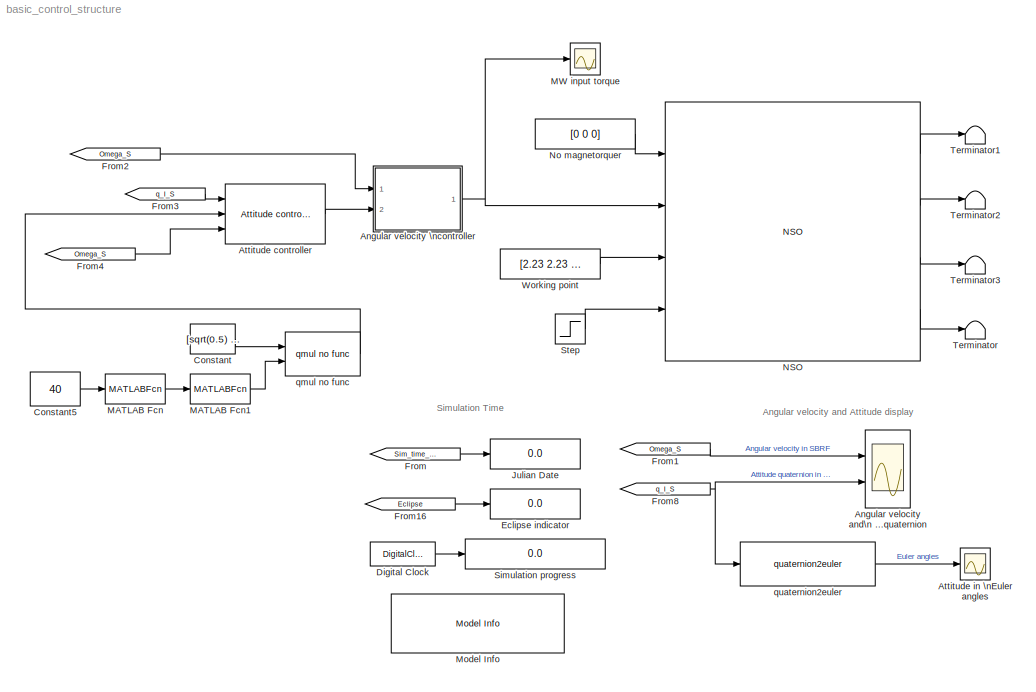
MODEL basic_control_structure
KIND model
CONFIG PreLoadFcn = \n
CONFIG StartFcn = \n\n
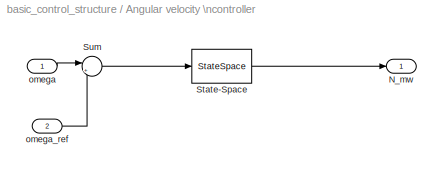
BLOCK [SubSystem] Angular velocity \ncontroller
  MaskDescription = The controller in this block is to be constructed using a state space system. The\nreference is subtracted from the measurement (positive feedback and SS-reference) and passed through the SS-system. Thus if the controller is merely a gain matrix only the D-matrix has to contain the controller and the remaining be zero-matrices. The controller design files are kept in the \"design\" directory and t...<+195ch>
  MaskEnableString = on
  MaskHideContents = off
  MaskIconFrame = on
  MaskIconOpaque = on
  MaskIconRotate = none
  MaskIconUnits = autoscale
  MaskInitialization = run(strcat('design/',ang_file_name))
  MaskPromptString = Angular rate controller design file name (remember gnyfs :-))
  MaskStyleString = edit
  MaskToolTipString = on
  MaskTunableValueString = on
  MaskType = Angular Velocity Controller
  MaskValueString = 'basic_ang_control.m'
  MaskVariables = ang_file_name=@1;
  MaskVisibilityString = on
  MinAlgLoopOccurrences = off
  Ports = [2, 1]
  RTWSystemCode = Auto
  TreatAsAtomicUnit = off
BLOCK [Outport] Angular velocity \ncontroller/N_mw
  BusOutputAsStruct = off
  IconDisplay = Port number
BLOCK [StateSpace] Angular velocity \ncontroller/State-Space
  A = A_ang_c
  B = B_ang_c
  C = C_ang_c
  D = D_ang_c
BLOCK [Sum] Angular velocity \ncontroller/Sum
  IconShape = round
  InputSameDT = off
  Inputs = |+-
  OutDataTypeMode = Inherit via internal rule
  Ports = [2, 1]
  SaturateOnIntegerOverflow = off
BLOCK [Inport] Angular velocity \ncontroller/omega
  IconDisplay = Port number
BLOCK [Inport] Angular velocity \ncontroller/omega_ref
  IconDisplay = Port number
  Port = 2
BLOCK [Scope] Angular velocity and\n attitude quaternion
  DataFormat = StructureWithTime
  Floating = off
  LimitDataPoints = off
  NumInputPorts = 2
  Ports = [2]
  SampleTime = 0
  YMax = 1250~1
  YMin = -250~-1
  ZoomMode = xonly
BLOCK [Reference] Attitude controller  REF=components_lib/ACS/Controllers/Attitude controller  (lib defined in mdl_419550584dda)
  Ports = [3, 1]
  ShowPortLabels = on
  SourceBlock = components_lib/ACS/Controllers/Attitude controller
  SourceType = Attitude Controller
  att_file_name = 'attitude_control_lqr.m'
BLOCK [Scope] Attitude in \nEuler angles
  DataFormat = StructureWithTime
  Floating = off
  LimitDataPoints = off
  NumInputPorts = 1
  Ports = [1]
  SampleTime = 0
  SaveName = ScopeData1
  YMax = 3.5
  YMin = -3.5
BLOCK [Constant] Constant
  Value = [sqrt(0.5) 0 0 sqrt(0.5)]
BLOCK [Constant] Constant5
  Value = 40
BLOCK [DigitalClock] Digital Clock
BLOCK [Display] Eclipse indicator
  Decimation = 1
  Lockdown = off
  Ports = [1]
BLOCK [From] From
  CloseFcn = tagdialog Close
  GotoTag = Sim_time_JD
BLOCK [From] From1
  CloseFcn = tagdialog Close
  GotoTag = Omega_S
BLOCK [From] From16
  CloseFcn = tagdialog Close
  GotoTag = Eclipse
BLOCK [From] From2
  CloseFcn = tagdialog Close
  GotoTag = Omega_S
BLOCK [From] From3
  CloseFcn = tagdialog Close
  GotoTag = q_I_S
BLOCK [From] From4
  CloseFcn = tagdialog Close
  GotoTag = Omega_S
BLOCK [From] From8
  CloseFcn = tagdialog Close
  GotoTag = q_I_S
BLOCK [Display] Julian Date
  Decimation = 1
  Lockdown = off
  Ports = [1]
BLOCK [MATLABFcn] MATLAB Fcn
  MATLABFcn = deg2rad(u)
BLOCK [MATLABFcn] MATLAB Fcn1
  MATLABFcn = [sin(u/2) 0 0 cos(u/2)]
BLOCK [Scope] MW input torque
  DataFormat = StructureWithTime
  Floating = off
  LimitDataPoints = off
  NumInputPorts = 1
  Ports = [1]
  SampleTime = 0
  SaveName = ScopeData6
  YMax = 6e-06
  YMin = -7e-06
  ZoomMode = yonly
BLOCK [Reference] Model Info  REF=simulink/Model-Wide\nUtilities/Model Info
  BlockCM = None
  DisplayStringWithTags = Usefull Julian dates:\nsun to eclipse : 2452315.560376\n32 sec. before : 2452315.56\neclipse to sun : 2452315.513363
  Frame = on
  HorizontalTextAlignment = Left
  InitialBlockCM = None
  LeftAlignmentValue = 0.02
  MaskDisplayString = Usefull Julian dates:\\nsun to eclipse : 2452315.560376\\n32 sec. before : 2452315.56\\neclipse to sun : 2452315.513363
  Ports = []
  ShowPortLabels = on
  SourceBlock = simulink/Model-Wide\nUtilities/Model Info
  SourceBlockDiagram = basic_control_structure
  SourceType = CMBlock
  TagMaxNumber = 20
BLOCK [Reference] NSO  REF=components_lib/NSO  (lib defined in mdl_419550584dda)
  Cd = 2
  Description = AAUSAT-II Model
  Dim = [0.1 0.1 0.3]
  Ports = [4, 4]
  ShowPortLabels = on
  SourceBlock = components_lib/NSO
  Tag = AAUSAT-II Model
  alb_emu_enabled = off
  enable_dist = off
  enable_sensor_emulation = off
  inertia_c = [25 25 5]/1e3
  inertia_d = [42.3 42.3 28.4]/1e3
  init_jd = 2452315.56
  mass_sc = 3
  q_init_s_i = [sqrt(0.5) 0 0 sqrt(0.5)]
  q_s_c = [0 0 0 1]
  r_com_s = [0.05 0.05 0.15]
  r_com_s_deployed = [0.05 0.05 0.125]
  rho = 9.25e-13
  sat_temp_start = 0
  w_init_s = [0.1 0.1 0.1]
BLOCK [Constant] No magnetorquer
  Value = [0 0 0]
BLOCK [Display] Simulation progress
  Decimation = 1
  Format = long
  Lockdown = off
  Ports = [1]
BLOCK [Step] Step
  SampleTime = 0
  Time = 0
BLOCK [Terminator] Terminator
BLOCK [Terminator] Terminator1
BLOCK [Terminator] Terminator2
BLOCK [Terminator] Terminator3
BLOCK [Constant] Working point
  Value = [2.23 2.23 2.23]*1e-3
BLOCK [Reference] qmul no func  REF=components_lib/Math utilities/Quaternion operations/qmul no func  (lib defined in mdl_419550584dda)
  Ports = [2, 1]
  ShowPortLabels = on
  SourceBlock = components_lib/Math utilities/Quaternion operations/qmul no func
  SourceType = SubSystem
BLOCK [Reference] quaternion2euler  REF=components_lib/Math utilities/Quaternion operations/quaternion2euler  (lib defined in mdl_419550584dda)
  Ports = [1, 1]
  ShowPortLabels = on
  SourceBlock = components_lib/Math utilities/Quaternion operations/quaternion2euler
  SourceType = SubSystem
ANNOTATION (root): Angular velocity and Attitude display
ANNOTATION (root): Simulation Time
LINE Angular velocity \ncontroller/State-Space:1 -> Angular velocity \ncontroller/N_mw:1
LINE Angular velocity \ncontroller/Sum:1 -> Angular velocity \ncontroller/State-Space:1
LINE Angular velocity \ncontroller/omega:1 -> Angular velocity \ncontroller/Sum:1
LINE Angular velocity \ncontroller/omega_ref:1 -> Angular velocity \ncontroller/Sum:2
NET Angular velocity \ncontroller:1 -> MW input torque:1, NSO:2
LINE Attitude controller:1 -> Angular velocity \ncontroller:2
LINE Constant5:1 -> MATLAB Fcn:1
LINE Constant:1 -> qmul no func:1
LINE Digital Clock:1 -> Simulation progress:1
LINE From16:1 -> Eclipse indicator:1
LINE From1:1 -> Angular velocity and\n attitude quaternion:1
LINE From2:1 -> Angular velocity \ncontroller:1
LINE From3:1 -> Attitude controller:1
LINE From4:1 -> Attitude controller:3
NET From8:1 -> Angular velocity and\n attitude quaternion:2, quaternion2euler:1
LINE From:1 -> Julian Date:1
LINE MATLAB Fcn1:1 -> qmul no func:2
LINE MATLAB Fcn:1 -> MATLAB Fcn1:1
LINE NSO:1 -> Terminator1:1
LINE NSO:2 -> Terminator2:1
LINE NSO:3 -> Terminator3:1
LINE NSO:4 -> Terminator:1
LINE No magnetorquer:1 -> NSO:1
LINE Step:1 -> NSO:4
LINE Working point:1 -> NSO:3
LINE qmul no func:1 -> Attitude controller:2
LINE quaternion2euler:1 -> Attitude in \nEuler angles:1
note: NET lines group one-source signal fan-out (src -> all destinations, sorted); 1:1 wires keep LINE
